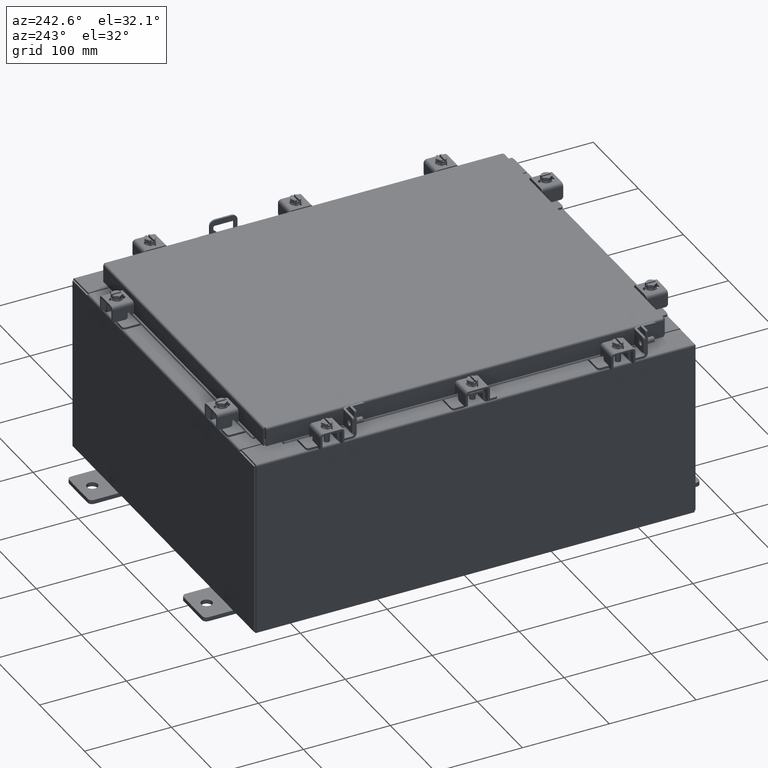
[diagram: clean part render]
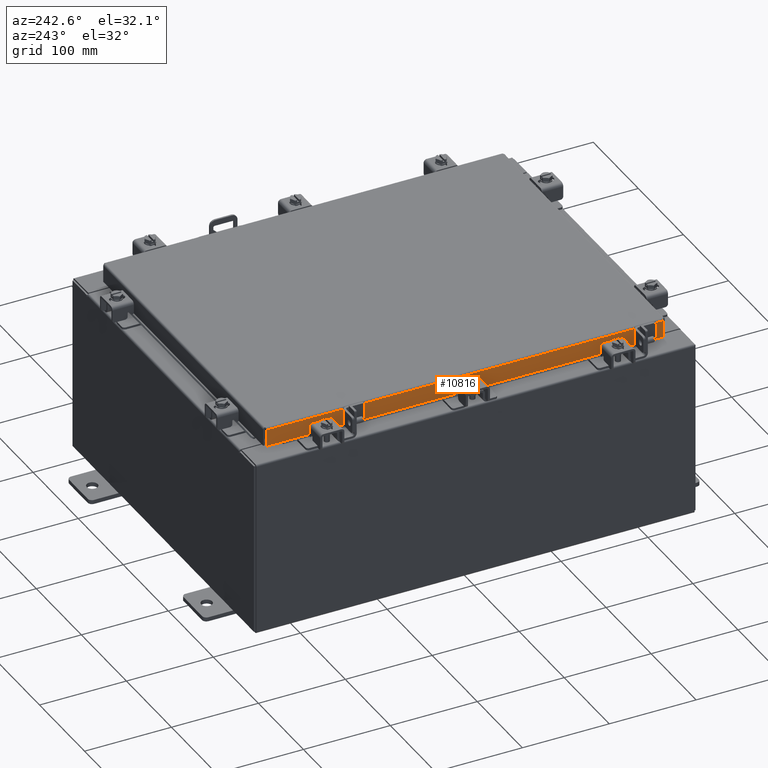
[diagram: same view with one face highlighted and labeled with its STEP entity id]
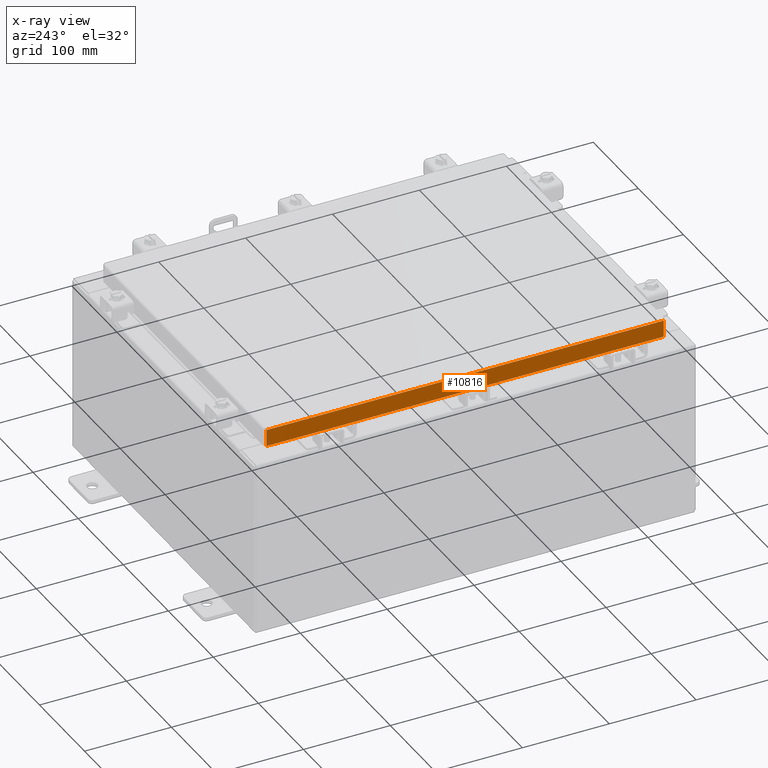
[diagram: x-ray of the same camera — body ghosted, the highlighted face saturated]
A machine part, auxiliary view. The second image highlights one B-rep face of the part: STEP entity #10816.
The next image is the same camera in x-ray: the body ghosted, the highlighted face saturated — about 0% of this face is hidden behind the body in this view.
In plain terms, the highlighted planar face has unit normal (1, 0, -0).
Its self-contained STEP definition (entity closure, byte-faithful):
#1037 = ORIENTED_EDGE ( 'NONE', *, *, #14422, .F. ) ;
#1531 = CARTESIAN_POINT ( 'NONE',  ( -7.078000000000003800, -9.005157864376270600, -0.07470000000000015500 ) ) ;
#1691 = CARTESIAN_POINT ( 'NONE',  ( -7.078000000000005600, -9.094000000000003000, -0.8499999999999999800 ) ) ;
#2350 = VERTEX_POINT ( 'NONE', #5834 ) ;
#2536 = CARTESIAN_POINT ( 'NONE',  ( -7.078000000000001200, -8.255157864376261800, -0.8500000000000020900 ) ) ;
#2669 = EDGE_CURVE ( 'NONE', #11745, #2350, #12259, .T. ) ;
#2831 = LINE ( 'NONE', #7553, #11541 ) ;
#3006 = VECTOR ( 'NONE', #9634, 39.37007874015748100 ) ;
#3191 = VERTEX_POINT ( 'NONE', #5425 ) ;
#3274 = DIRECTION ( 'NONE',  ( -2.818880942772360100E-015, 6.982962677686265900E-015, -1.000000000000000000 ) ) ;
#3290 = EDGE_CURVE ( 'NONE', #11488, #3191, #18762, .T. ) ;
#3577 = ORIENTED_EDGE ( 'NONE', *, *, #2669, .T. ) ;
#4259 = LINE ( 'NONE', #1691, #21683 ) ;
#4468 = CARTESIAN_POINT ( 'NONE',  ( -7.078000000000003800, 0.0000000000000000000, 1.966930555438269700E-014 ) ) ;
#4901 = VECTOR ( 'NONE', #21016, 39.37007874015748100 ) ;
#5425 = CARTESIAN_POINT ( 'NONE',  ( -7.078000000000001200, 8.255157864376267100, -0.8500000000000020900 ) ) ;
#5755 = CARTESIAN_POINT ( 'NONE',  ( -7.078000000000003800, 9.005157864376265300, 8.304817900739359900E-014 ) ) ;
#5834 = CARTESIAN_POINT ( 'NONE',  ( -7.078000000000005600, 9.005157864376270600, -0.8499999999999977600 ) ) ;
#7261 = EDGE_CURVE ( 'NONE', #8117, #12270, #22132, .T. ) ;
#7553 = CARTESIAN_POINT ( 'NONE',  ( -7.078000000000003800, -9.094000000000003000, -0.08770000000000026400 ) ) ;
#7780 = CARTESIAN_POINT ( 'NONE',  ( -7.078000000000005600, -9.094000000000003000, -0.8499999999999999800 ) ) ;
#7962 = PLANE ( 'NONE',  #21231 ) ;
#8117 = VERTEX_POINT ( 'NONE', #15579 ) ;
#8581 = VECTOR ( 'NONE', #14765, 39.37007874015748100 ) ;
#8815 = EDGE_LOOP ( 'NONE', ( #13551, #3577, #1037, #15283, #11218, #14506 ) ) ;
#9634 = DIRECTION ( 'NONE',  ( -2.818880942772360100E-015, 6.982962677686265900E-015, -1.000000000000000000 ) ) ;
#9727 = DIRECTION ( 'NONE',  ( -2.818880942772360100E-015, 0.0000000000000000000, -1.000000000000000000 ) ) ;
#10816 = ADVANCED_FACE ( 'NONE', ( #14642 ), #7962, .F. ) ;
#11218 = ORIENTED_EDGE ( 'NONE', *, *, #15812, .F. ) ;
#11488 = VERTEX_POINT ( 'NONE', #2536 ) ;
#11541 = VECTOR ( 'NONE', #17975, 39.37007874015748100 ) ;
#11745 = VERTEX_POINT ( 'NONE', #11871 ) ;
#11871 = CARTESIAN_POINT ( 'NONE',  ( -7.078000000000003800, 9.005157864376265300, -0.08770000000000026400 ) ) ;
#12175 = DIRECTION ( 'NONE',  ( 4.379057701015054300E-047, 1.000000000000000000, 1.201604571657912400E-016 ) ) ;
#12259 = LINE ( 'NONE', #5755, #3006 ) ;
#12270 = VERTEX_POINT ( 'NONE', #21482 ) ;
#13206 = LINE ( 'NONE', #7780, #8581 ) ;
#13551 = ORIENTED_EDGE ( 'NONE', *, *, #18085, .F. ) ;
#14422 = EDGE_CURVE ( 'NONE', #3191, #2350, #13206, .T. ) ;
#14506 = ORIENTED_EDGE ( 'NONE', *, *, #7261, .F. ) ;
#14529 = CARTESIAN_POINT ( 'NONE',  ( -7.078000000000001200, -8.255157864376263500, -0.8500000000000020900 ) ) ;
#14642 = FACE_OUTER_BOUND ( 'NONE', #8815, .T. ) ;
#14765 = DIRECTION ( 'NONE',  ( 4.379057701015054300E-047, 1.000000000000000000, 1.201604571657912400E-016 ) ) ;
#15283 = ORIENTED_EDGE ( 'NONE', *, *, #3290, .F. ) ;
#15579 = CARTESIAN_POINT ( 'NONE',  ( -7.078000000000003800, -9.005157864376270600, -0.08770000000000026400 ) ) ;
#15812 = EDGE_CURVE ( 'NONE', #12270, #11488, #4259, .T. ) ;
#17975 = DIRECTION ( 'NONE',  ( 3.387180227794633400E-031, -1.000000000000000000, -9.232666117091638000E-046 ) ) ;
#18085 = EDGE_CURVE ( 'NONE', #11745, #8117, #2831, .T. ) ;
#18762 = LINE ( 'NONE', #14529, #4901 ) ;
#20135 = DIRECTION ( 'NONE',  ( 1.000000000000000000, 3.387180227794633400E-031, -2.818880942772360100E-015 ) ) ;
#21016 = DIRECTION ( 'NONE',  ( -0.0000000000000000000, 1.000000000000000000, -0.0000000000000000000 ) ) ;
#21231 = AXIS2_PLACEMENT_3D ( 'NONE', #4468, #20135, #9727 ) ;
#21482 = CARTESIAN_POINT ( 'NONE',  ( -7.078000000000005600, -9.005157864376265300, -0.8499999999999999800 ) ) ;
#21592 = VECTOR ( 'NONE', #3274, 39.37007874015748100 ) ;
#21683 = VECTOR ( 'NONE', #12175, 39.37007874015748100 ) ;
#22132 = LINE ( 'NONE', #1531, #21592 ) ;